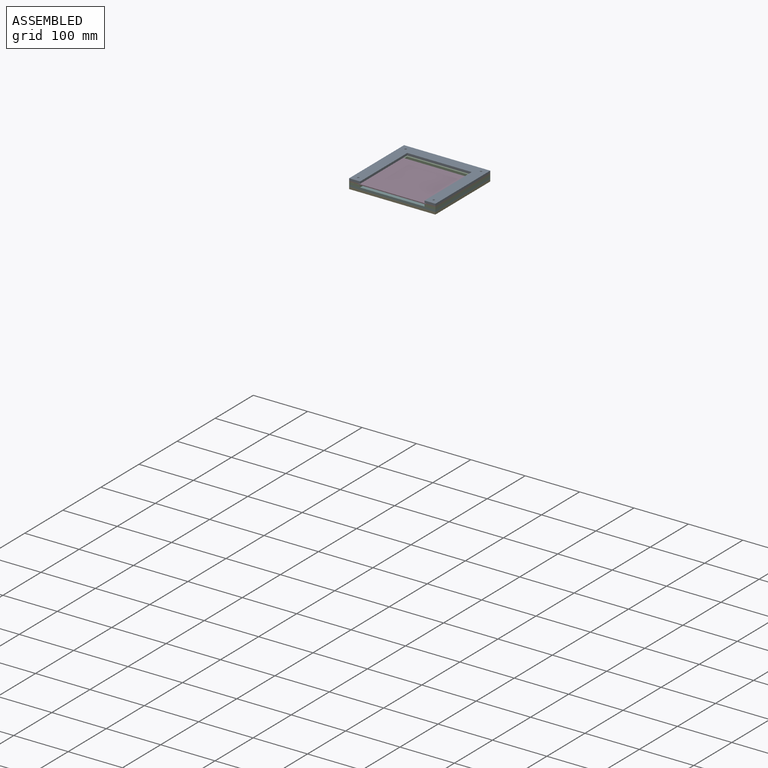
[diagram: assembled view]
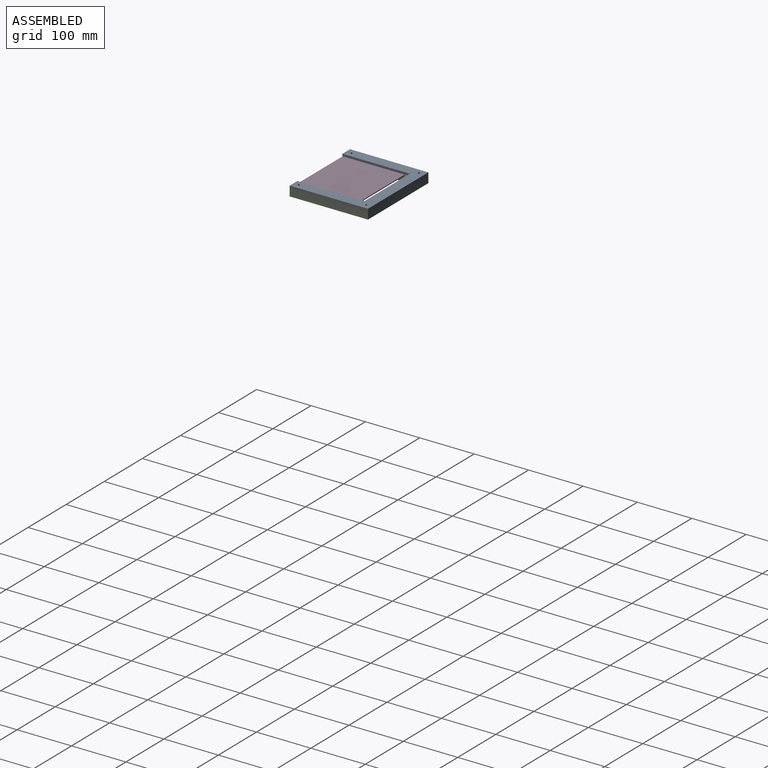
[diagram: assembled view, second angle]
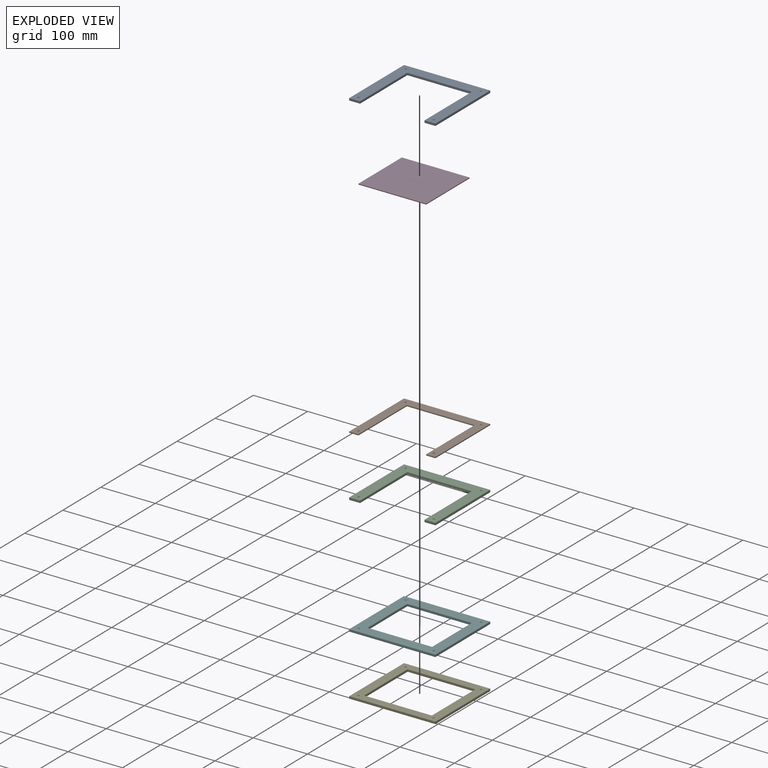
[diagram: exploded view]
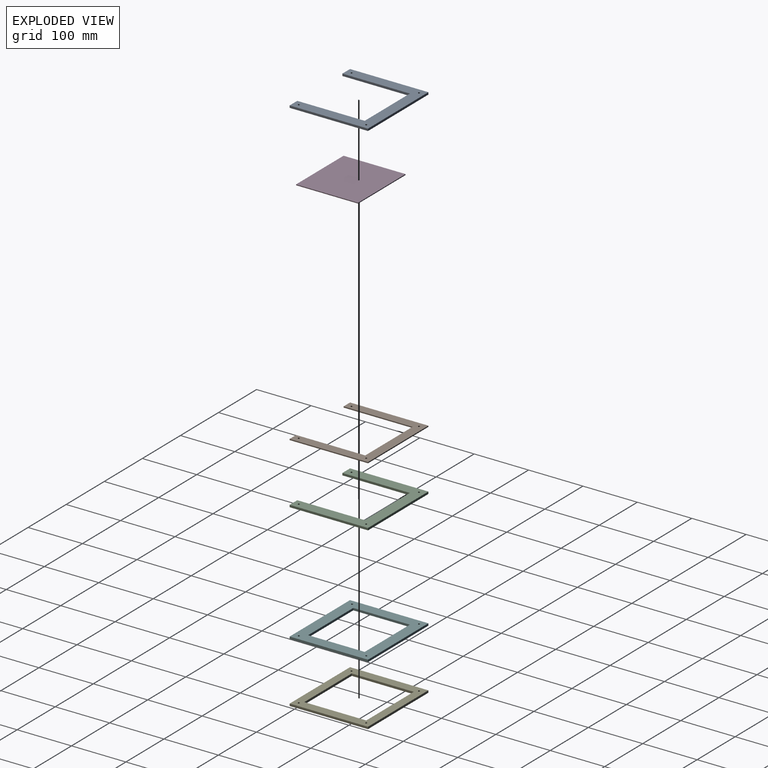
[diagram: exploded view, second angle]
ASSEMBLY  parts=6 mates=5
PART A: 14 faces, bbox 158.5x144x4 mm
  f0: plane 124x4mm, normal (1,0,0), area 496mm2, adj f1,f10,f12,f13
  f1: plane 118.5x4mm, normal (0,-1,0), area 474mm2, adj f0,f2,f12,f13
  f2: plane 124x4mm, normal (-1,0,0), area 496mm2, adj f1,f3,f12,f13
  f3: plane 20x4mm, normal (0,-1,0), area 80mm2, adj f2,f4,f12,f13
  f4: plane 144x4mm, normal (1,0,0), area 576mm2, adj f3,f5,f12,f13
  f5: plane 158.5x4mm, normal (0,1,0), area 634mm2, adj f4,f6,f12,f13
  f6: plane 144x4mm, normal (-1,0,0), area 576mm2, adj f5,f10,f12,f13
  f7: cylinder r=1.75mm len=4mm, axis (0,0,-1), area 44mm2, adj f12,f13
  f8: cylinder r=1.75mm len=4mm, axis (0,0,-1), area 44mm2, adj f12,f13
  f9: cylinder r=1.75mm len=4mm, axis (0,0,-1), area 44mm2, adj f12,f13
  f10: plane 20x4mm, normal (0,-1,0), area 80mm2, adj f0,f6,f12,f13
  f11: cylinder r=1.75mm len=4mm, axis (0,0,-1), area 44mm2, adj f12,f13
  f12: plane 158.5x144mm, normal (0,0,1), area 8091.5mm2, adj f0,f1,f2,f3,f4,f5,f6,f7
  f13: plane 158.5x144mm, normal (0,0,-1), area 8091.5mm2, adj f0,f1,f2,f3,f4,f5,f6,f7
PART B: 14 faces, bbox 158.5x144x2 mm
  f0: plane 126.86x2mm, normal (1,0,0), area 253.7mm2, adj f1,f10,f12,f13
  f1: plane 124.5x2mm, normal (0,-1,0), area 249mm2, adj f0,f2,f12,f13
  f2: plane 127x2mm, normal (-1,0,0), area 254mm2, adj f1,f3,f12,f13
  f3: plane 17x2mm, normal (0,-1,0), area 34mm2, adj f2,f4,f12,f13
  f4: plane 144x2mm, normal (1,0,0), area 288mm2, adj f3,f5,f12,f13
  f5: plane 158.5x2mm, normal (0,1,0), area 317mm2, adj f4,f6,f12,f13
  f6: plane 144x2mm, normal (-1,0,0), area 288mm2, adj f5,f10,f12,f13
  f7: cylinder r=1.75mm len=3.5mm, axis (0,0,-1), area 22mm2, adj f12,f13
  f8: cylinder r=1.75mm len=3.5mm, axis (0,0,-1), area 22mm2, adj f12,f13
  f9: cylinder r=1.75mm len=3.5mm, axis (0,0,-1), area 22mm2, adj f12,f13
  f10: plane 17x2mm, normal (0.01,-1,0), area 34mm2, adj f0,f6,f12,f13
  f11: cylinder r=1.75mm len=3.5mm, axis (0,0,-1), area 22mm2, adj f12,f13
  f12: plane 158.5x144mm, normal (0,0,1), area 6972.8mm2, adj f0,f1,f2,f3,f4,f5,f6,f7
  f13: plane 158.5x144mm, normal (0,0,-1), area 6972.8mm2, adj f0,f1,f2,f3,f4,f5,f6,f7
PART C: 14 faces, bbox 158.5x144x4 mm
  f0: plane 20x4mm, normal (0,-1,0), area 80mm2, adj f1,f10,f12,f13
  f1: plane 124x4mm, normal (1,0,0), area 496mm2, adj f0,f2,f12,f13
  f2: plane 118.5x4mm, normal (0,-1,0), area 474mm2, adj f1,f3,f12,f13
  f3: plane 124x4mm, normal (-1,0,0), area 496mm2, adj f2,f4,f12,f13
  f4: plane 20x4mm, normal (0,-1,0), area 80mm2, adj f3,f5,f12,f13
  f5: plane 144x4mm, normal (1,0,0), area 576mm2, adj f4,f6,f12,f13
  f6: plane 158.5x4mm, normal (0,1,0), area 634mm2, adj f5,f10,f12,f13
  f7: cylinder r=1.75mm len=4mm, axis (0,0,-1), area 44mm2, adj f12,f13
  f8: cylinder r=1.75mm len=4mm, axis (0,0,-1), area 44mm2, adj f12,f13
  f9: cylinder r=1.75mm len=4mm, axis (0,0,-1), area 44mm2, adj f12,f13
  f10: plane 144x4mm, normal (-1,0,0), area 576mm2, adj f0,f6,f12,f13
  f11: cylinder r=1.75mm len=4mm, axis (0,0,-1), area 44mm2, adj f12,f13
  f12: plane 158.5x144mm, normal (0,0,1), area 8091.5mm2, adj f0,f1,f2,f3,f4,f5,f6,f7
  f13: plane 158.5x144mm, normal (0,0,-1), area 8091.5mm2, adj f0,f1,f2,f3,f4,f5,f6,f7
PART D: 6 faces, bbox 124.5x114x1.6 mm
  f0: plane 124.5x1.6mm, normal (0,1,0), area 199.2mm2, adj f1,f3,f4,f5
  f1: plane 114x1.6mm, normal (-1,0,0), area 182.4mm2, adj f0,f2,f4,f5
  f2: plane 124.5x1.6mm, normal (0,-1,0), area 199.2mm2, adj f1,f3,f4,f5
  f3: plane 114x1.6mm, normal (1,0,0), area 182.4mm2, adj f0,f2,f4,f5
  f4: plane 124.5x114mm, normal (0,0,1), area 14193mm2, adj f0,f1,f2,f3
  f5: plane 124.5x114mm, normal (0,0,-1), area 14193mm2, adj f0,f1,f2,f3
PART E: 14 faces, bbox 158.5x144x4 mm
  f0: plane 158.5x4mm, normal (0,-1,0), area 634mm2, adj f1,f11,f12,f13
  f1: plane 144x4mm, normal (1,0,0), area 576mm2, adj f0,f2,f12,f13
  f2: plane 158.5x4mm, normal (0,1,0), area 634mm2, adj f1,f11,f12,f13
  f3: plane 114x4mm, normal (1,0,0), area 456mm2, adj f4,f6,f12,f13
  f4: plane 124.5x4mm, normal (0,-1,0), area 498mm2, adj f3,f5,f12,f13
  f5: plane 114x4mm, normal (-1,0,0), area 456mm2, adj f4,f6,f12,f13
  f6: plane 124.5x4mm, normal (0,1,0), area 498mm2, adj f3,f5,f12,f13
  f7: cylinder r=1.75mm len=4mm, axis (0,0,-1), area 44mm2, adj f12,f13
  f8: cylinder r=1.75mm len=4mm, axis (0,0,-1), area 44mm2, adj f12,f13
  f9: cylinder r=1.75mm len=4mm, axis (0,0,-1), area 44mm2, adj f12,f13
  f10: cylinder r=1.75mm len=4mm, axis (0,0,-1), area 44mm2, adj f12,f13
  f11: plane 144x4mm, normal (-1,0,0), area 576mm2, adj f0,f2,f12,f13
  f12: plane 158.5x144mm, normal (0,0,1), area 8592.5mm2, adj f0,f1,f2,f3,f4,f5,f6,f7
  f13: plane 158.5x144mm, normal (0,0,-1), area 8592.5mm2, adj f0,f1,f2,f3,f4,f5,f6,f7
PART F: 14 faces, bbox 158.5x144x4 mm
  f0: plane 158.5x4mm, normal (0,-1,0), area 634mm2, adj f1,f11,f12,f13
  f1: plane 144x4mm, normal (1,0,0), area 576mm2, adj f0,f2,f12,f13
  f2: plane 158.5x4mm, normal (0,1,0), area 634mm2, adj f1,f11,f12,f13
  f3: plane 104x4mm, normal (1,0,0), area 416mm2, adj f4,f10,f12,f13
  f4: plane 118.5x4mm, normal (0,-1,0), area 474mm2, adj f3,f5,f12,f13
  f5: plane 104x4mm, normal (-1,0,0), area 416mm2, adj f4,f10,f12,f13
  f6: cylinder r=1.75mm len=4mm, axis (0,0,-1), area 44mm2, adj f12,f13
  f7: cylinder r=1.75mm len=4mm, axis (0,0,-1), area 44mm2, adj f12,f13
  f8: cylinder r=1.75mm len=4mm, axis (0,0,-1), area 44mm2, adj f12,f13
  f9: cylinder r=1.75mm len=4mm, axis (0,0,-1), area 44mm2, adj f12,f13
  f10: plane 118.5x4mm, normal (0,1,0), area 474mm2, adj f3,f5,f12,f13
  f11: plane 144x4mm, normal (-1,0,0), area 576mm2, adj f0,f2,f12,f13
  f12: plane 158.5x144mm, normal (0,0,1), area 10461.5mm2, adj f0,f1,f2,f3,f4,f5,f6,f7
  f13: plane 158.5x144mm, normal (0,0,-1), area 10461.5mm2, adj f0,f1,f2,f3,f4,f5,f6,f7
PLACE A t=(-280.33,93.67,-152.23)mm
PLACE B t=(-69.27,93.79,-154.23)mm
PLACE C t=(-494.21,-91.3,-158.23)mm
PLACE D t=(-74.52,-106.3,-154.23)mm
PLACE E t=(-74.52,-91.3,-166.23)mm
PLACE F t=(-281.34,-90.43,-162.23)mm
MATE fastened E.f12 <-> F.f13  axis (0,0,1) through (0.91,-108.3,-162.23)mm
MATE fastened B.f12 <-> A.f13  axis (0,0,1) through (0.91,-108.3,-152.23)mm
MATE fastened C.f12 <-> B.f13  axis (0,0,1) through (0.91,-108.3,-154.23)mm
MATE fastened B.f2 <-> D.f3  axis (-1,0,0) through (-16.09,-108.3,-154.23)mm
MATE fastened F.f12 <-> C.f13  axis (0,0,1) through (0.91,-108.3,-158.23)mm
